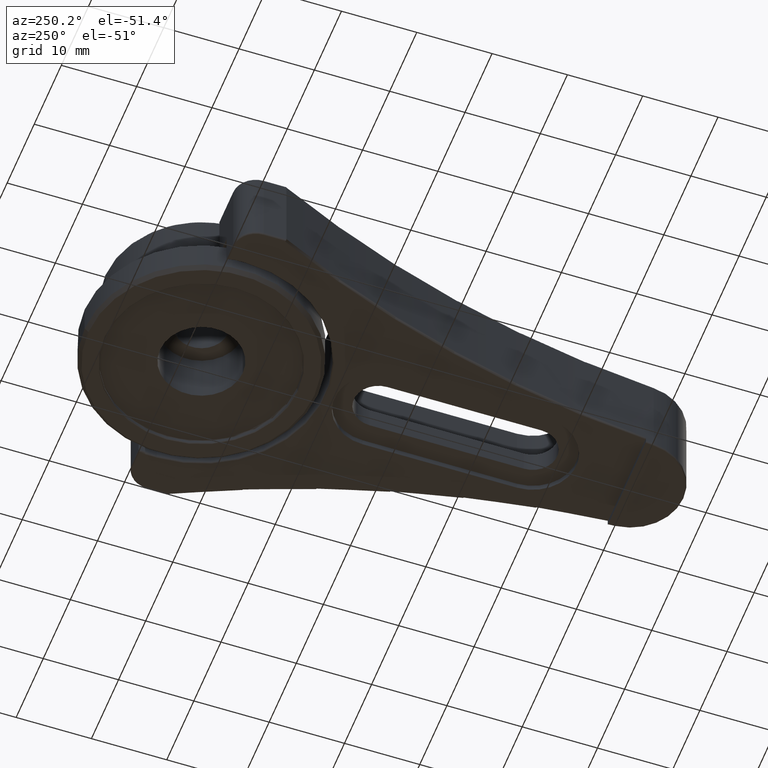
[diagram: clean part render]
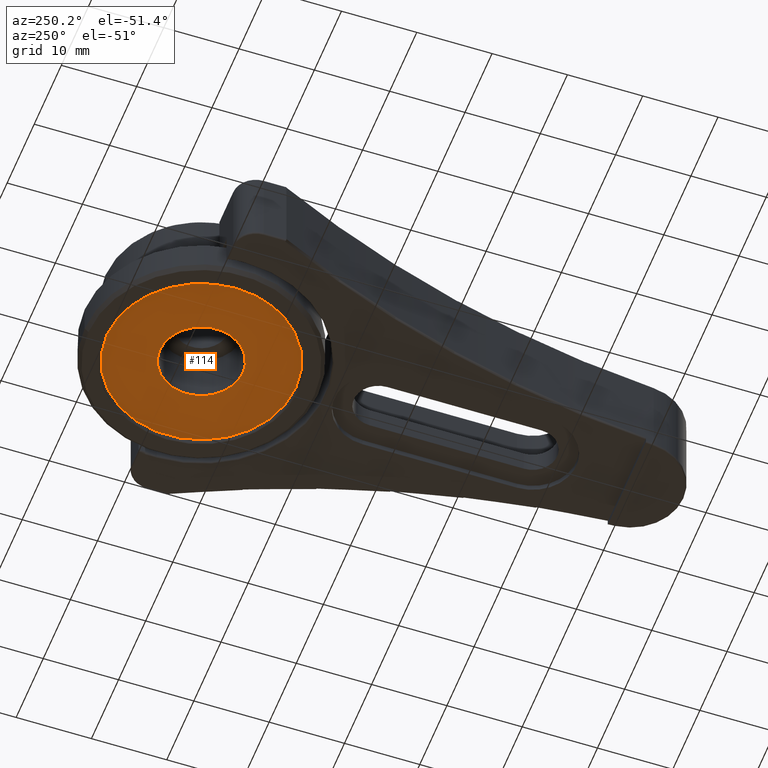
[diagram: same view with one face highlighted and labeled with its STEP entity id]
A machine part, auxiliary view. The second image highlights one B-rep face of the part: STEP entity #114.
In plain terms, the highlighted planar face has unit normal (-0, -0, 1).
Its self-contained STEP definition (entity closure, byte-faithful):
#27 = CIRCLE ( 'NONE', #1605, 12.55000000000000600 ) ;
#29 = DIRECTION ( 'NONE',  ( 0.0000000000000000000, 1.000000000000000000, 4.751483624438463400E-017 ) ) ;
#36 = EDGE_CURVE ( 'NONE', #318, #1661, #1938, .T. ) ;
#47 = ORIENTED_EDGE ( 'NONE', *, *, #2197, .F. ) ;
#114 = ADVANCED_FACE ( 'NONE', ( #2174, #2101 ), #1675, .F. ) ;
#144 = DIRECTION ( 'NONE',  ( -2.775557561562890700E-017, -4.783484228537276700E-017, 1.000000000000000000 ) ) ;
#226 = CARTESIAN_POINT ( 'NONE',  ( -9.224191754507240400E-012, 44.45000000000057800, -0.2000000000000002600 ) ) ;
#241 = DIRECTION ( 'NONE',  ( 0.0000000000000000000, 1.000000000000000000, 4.751483624438463400E-017 ) ) ;
#285 = CARTESIAN_POINT ( 'NONE',  ( -9.222645351863882100E-012, 57.00000000000057600, -0.1999999999999996500 ) ) ;
#318 = VERTEX_POINT ( 'NONE', #1655 ) ;
#479 = CARTESIAN_POINT ( 'NONE',  ( -9.222645351863882100E-012, 69.55000000000058000, -0.1999999999999990700 ) ) ;
#502 = AXIS2_PLACEMENT_3D ( 'NONE', #2325, #1219, #1239 ) ;
#512 = CIRCLE ( 'NONE', #1297, 5.500000000000005300 ) ;
#513 = DIRECTION ( 'NONE',  ( 0.0000000000000000000, 1.000000000000000000, 4.928191693115924500E-017 ) ) ;
#601 = EDGE_CURVE ( 'NONE', #2080, #1924, #1058, .T. ) ;
#719 = ORIENTED_EDGE ( 'NONE', *, *, #601, .F. ) ;
#967 = EDGE_CURVE ( 'NONE', #1661, #318, #512, .T. ) ;
#1003 = AXIS2_PLACEMENT_3D ( 'NONE', #1066, #2583, #29 ) ;
#1058 = CIRCLE ( 'NONE', #1003, 12.55000000000000600 ) ;
#1066 = CARTESIAN_POINT ( 'NONE',  ( -9.222645351863882100E-012, 57.00000000000057600, -0.1999999999999996500 ) ) ;
#1078 = EDGE_LOOP ( 'NONE', ( #719, #47 ) ) ;
#1169 = EDGE_LOOP ( 'NONE', ( #2116, #2343 ) ) ;
#1200 = CARTESIAN_POINT ( 'NONE',  ( -9.222645351863882100E-012, 57.00000000000057600, -0.1999999999999996500 ) ) ;
#1219 = DIRECTION ( 'NONE',  ( -2.775557561562890700E-017, -4.783484228537276700E-017, 1.000000000000000000 ) ) ;
#1239 = DIRECTION ( 'NONE',  ( -1.327683582113346900E-033, 1.000000000000000000, 4.783484228537276700E-017 ) ) ;
#1297 = AXIS2_PLACEMENT_3D ( 'NONE', #285, #1377, #513 ) ;
#1377 = DIRECTION ( 'NONE',  ( -2.775557561562890700E-017, -4.783484228537276700E-017, 1.000000000000000000 ) ) ;
#1605 = AXIS2_PLACEMENT_3D ( 'NONE', #2432, #2631, #241 ) ;
#1619 = DIRECTION ( 'NONE',  ( 0.0000000000000000000, 1.000000000000000000, 4.928191693115924500E-017 ) ) ;
#1655 = CARTESIAN_POINT ( 'NONE',  ( -9.222645351863882100E-012, 62.50000000000058300, -0.1999999999999993700 ) ) ;
#1661 = VERTEX_POINT ( 'NONE', #1927 ) ;
#1675 = PLANE ( 'NONE',  #502 ) ;
#1859 = AXIS2_PLACEMENT_3D ( 'NONE', #1200, #144, #1619 ) ;
#1924 = VERTEX_POINT ( 'NONE', #226 ) ;
#1927 = CARTESIAN_POINT ( 'NONE',  ( -9.223416052118069500E-012, 51.50000000000057600, -0.1999999999999999300 ) ) ;
#1938 = CIRCLE ( 'NONE', #1859, 5.500000000000005300 ) ;
#2080 = VERTEX_POINT ( 'NONE', #479 ) ;
#2101 = FACE_BOUND ( 'NONE', #1169, .T. ) ;
#2116 = ORIENTED_EDGE ( 'NONE', *, *, #36, .T. ) ;
#2174 = FACE_OUTER_BOUND ( 'NONE', #1078, .T. ) ;
#2197 = EDGE_CURVE ( 'NONE', #1924, #2080, #27, .T. ) ;
#2325 = CARTESIAN_POINT ( 'NONE',  ( -5.500000000009224600, 57.00000000000057600, -0.2000000000000002100 ) ) ;
#2343 = ORIENTED_EDGE ( 'NONE', *, *, #967, .T. ) ;
#2432 = CARTESIAN_POINT ( 'NONE',  ( -9.222645351863882100E-012, 57.00000000000057600, -0.1999999999999996500 ) ) ;
#2583 = DIRECTION ( 'NONE',  ( -2.775557561562890700E-017, -4.783484228537276700E-017, 1.000000000000000000 ) ) ;
#2631 = DIRECTION ( 'NONE',  ( -2.775557561562890700E-017, -4.783484228537276700E-017, 1.000000000000000000 ) ) ;